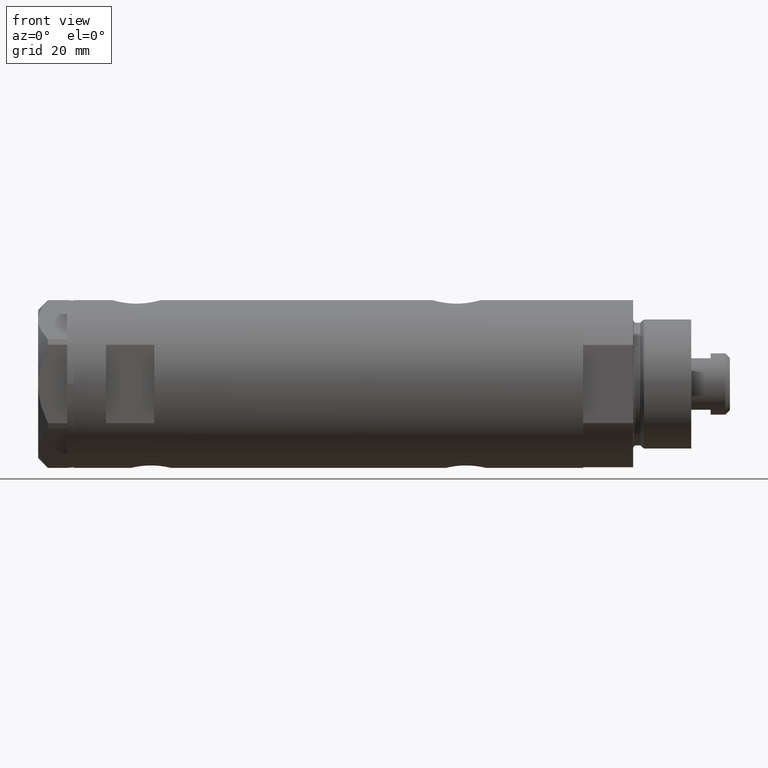
[diagram: clean part render]
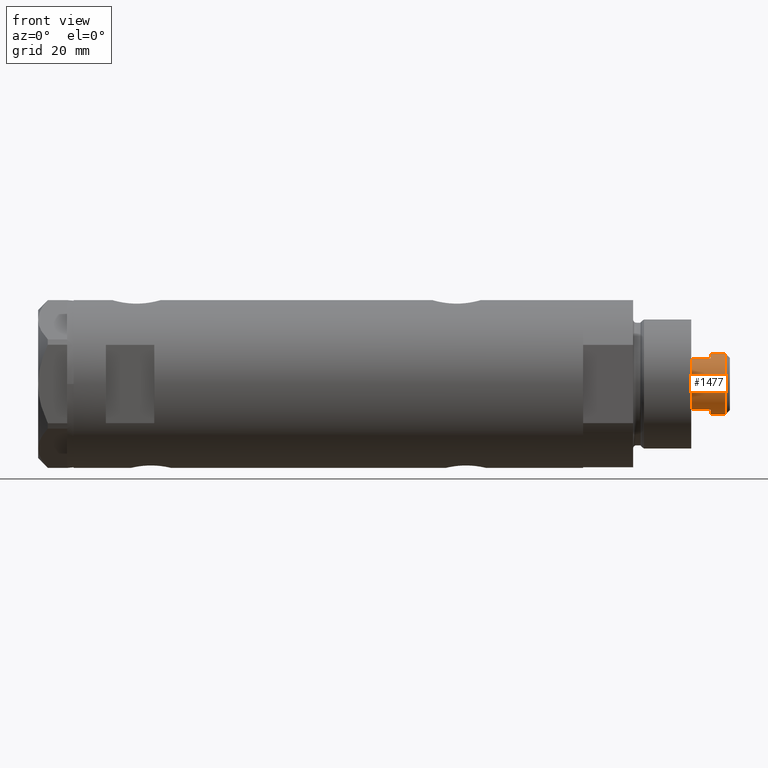
[diagram: same view with one face highlighted and labeled with its STEP entity id]
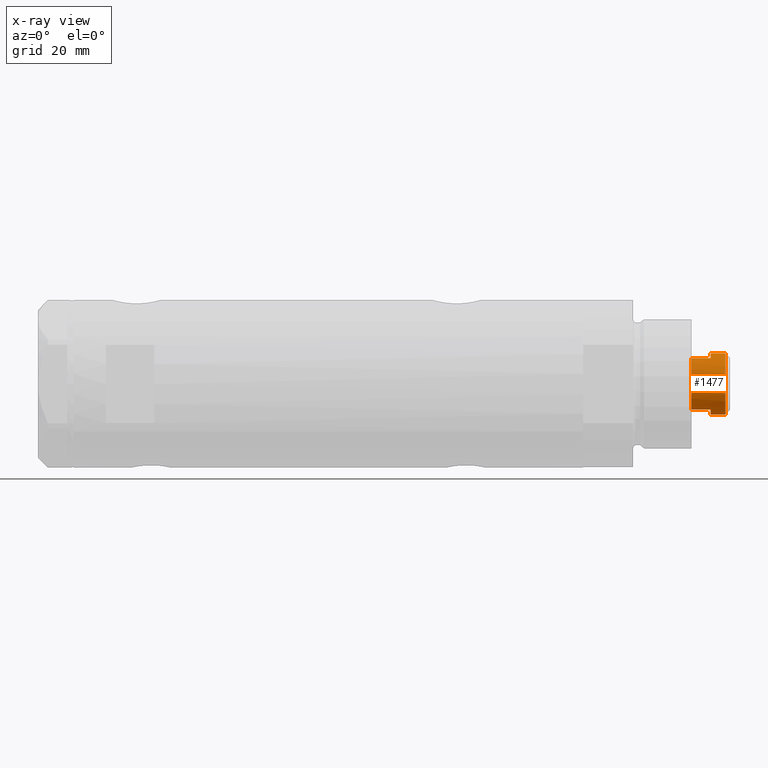
[diagram: x-ray of the same camera — body ghosted, the highlighted face saturated]
A machine part, front view. The second image highlights one B-rep face of the part: STEP entity #1477.
The next image is the same camera in x-ray: the body ghosted, the highlighted face saturated — about 0% of this face is hidden behind the body in this view.
In plain terms, the highlighted cylindrical surface (edge-blend (fillet) strip) has radius 9.5 mm, axis along (-1, -0, 0).
Its self-contained STEP definition (entity closure, byte-faithful):
#70 = DIRECTION ( 'NONE',  ( -0.000000000000000000, -0.000000000000000000, -1.000000000000000000 ) ) ;
#336 = ORIENTED_EDGE ( 'NONE', *, *, #3623, .T. ) ;
#351 = CARTESIAN_POINT ( 'NONE',  ( 0.000000000000000000, 0.000000000000000000, 178.2000000000000171 ) ) ;
#361 = DIRECTION ( 'NONE',  ( -0.000000000000000000, -0.000000000000000000, -1.000000000000000000 ) ) ;
#375 = DIRECTION ( 'NONE',  ( 1.000000000000000000, 0.000000000000000000, 0.000000000000000000 ) ) ;
#404 = AXIS2_PLACEMENT_3D ( 'NONE', #1886, #3188, #1607 ) ;
#406 = VECTOR ( 'NONE', #3936, 1000.000000000000000 ) ;
#496 = CARTESIAN_POINT ( 'NONE',  ( 0.000000000000000000, 0.000000000000000000, 173.6000000000000227 ) ) ;
#564 = AXIS2_PLACEMENT_3D ( 'NONE', #3082, #3827, #1476 ) ;
#649 = EDGE_CURVE ( 'NONE', #2928, #1361, #2753, .T. ) ;
#690 = LINE ( 'NONE', #714, #2821 ) ;
#714 = CARTESIAN_POINT ( 'NONE',  ( 9.500000000000001776, 1.163414459189985682E-15, 173.6000000000000227 ) ) ;
#735 = CIRCLE ( 'NONE', #404, 9.500000000000000000 ) ;
#906 = AXIS2_PLACEMENT_3D ( 'NONE', #496, #4404, #4095 ) ;
#1052 = DIRECTION ( 'NONE',  ( -0.000000000000000000, -0.000000000000000000, -1.000000000000000000 ) ) ;
#1056 = ORIENTED_EDGE ( 'NONE', *, *, #3935, .T. ) ;
#1063 = CIRCLE ( 'NONE', #564, 9.500000000000001776 ) ;
#1348 = EDGE_CURVE ( 'NONE', #4584, #2107, #690, .T. ) ;
#1361 = VERTEX_POINT ( 'NONE', #2615 ) ;
#1476 = DIRECTION ( 'NONE',  ( 1.000000000000000000, 0.000000000000000000, 0.000000000000000000 ) ) ;
#1477 = ADVANCED_FACE ( 'NONE', ( #2375 ), #4423, .T. ) ;
#1573 = CIRCLE ( 'NONE', #4345, 9.500000000000001776 ) ;
#1607 = DIRECTION ( 'NONE',  ( 1.000000000000000000, 0.000000000000000000, 0.000000000000000000 ) ) ;
#1663 = DIRECTION ( 'NONE',  ( -0.000000000000000000, -0.000000000000000000, -1.000000000000000000 ) ) ;
#1886 = CARTESIAN_POINT ( 'NONE',  ( 0.000000000000000000, 0.000000000000000000, 173.6000000000000227 ) ) ;
#1955 = ORIENTED_EDGE ( 'NONE', *, *, #649, .T. ) ;
#2106 = ORIENTED_EDGE ( 'NONE', *, *, #1348, .F. ) ;
#2107 = VERTEX_POINT ( 'NONE', #4213 ) ;
#2112 = CARTESIAN_POINT ( 'NONE',  ( -9.500000000000001776, 0.000000000000000000, 173.6000000000000227 ) ) ;
#2237 = VECTOR ( 'NONE', #70, 1000.000000000000000 ) ;
#2323 = LINE ( 'NONE', #4742, #406 ) ;
#2375 = FACE_OUTER_BOUND ( 'NONE', #3568, .T. ) ;
#2376 = DIRECTION ( 'NONE',  ( 0.000000000000000000, 0.000000000000000000, -1.000000000000000000 ) ) ;
#2423 = CIRCLE ( 'NONE', #906, 9.500000000000000000 ) ;
#2450 = VERTEX_POINT ( 'NONE', #2473 ) ;
#2473 = CARTESIAN_POINT ( 'NONE',  ( -9.500000000000000000, 0.000000000000000000, 173.6000000000000227 ) ) ;
#2479 = VERTEX_POINT ( 'NONE', #2845 ) ;
#2506 = LINE ( 'NONE', #2112, #2237 ) ;
#2615 = CARTESIAN_POINT ( 'NONE',  ( -7.982950582334825462, -5.150000000000194866, 167.6000000000000227 ) ) ;
#2753 = LINE ( 'NONE', #3208, #4502 ) ;
#2767 = DIRECTION ( 'NONE',  ( -1.000000000000000000, 0.000000000000000000, 0.000000000000000000 ) ) ;
#2785 = VERTEX_POINT ( 'NONE', #5074 ) ;
#2821 = VECTOR ( 'NONE', #1052, 1000.000000000000000 ) ;
#2845 = CARTESIAN_POINT ( 'NONE',  ( -9.500000000000001776, 0.000000000000000000, 178.2000000000000171 ) ) ;
#2901 = EDGE_CURVE ( 'NONE', #2450, #2928, #735, .T. ) ;
#2928 = VERTEX_POINT ( 'NONE', #3584 ) ;
#2974 = ORIENTED_EDGE ( 'NONE', *, *, #3868, .T. ) ;
#3082 = CARTESIAN_POINT ( 'NONE',  ( 0.000000000000000000, 0.000000000000000000, 167.6000000000000227 ) ) ;
#3188 = DIRECTION ( 'NONE',  ( 0.000000000000000000, 0.000000000000000000, 1.000000000000000000 ) ) ;
#3208 = CARTESIAN_POINT ( 'NONE',  ( -7.982950582334829015, -5.150000000000001243, 173.6000000000000227 ) ) ;
#3479 = ORIENTED_EDGE ( 'NONE', *, *, #4995, .F. ) ;
#3568 = EDGE_LOOP ( 'NONE', ( #2106, #2974, #1056, #4052, #1955, #336, #3479, #4260 ) ) ;
#3584 = CARTESIAN_POINT ( 'NONE',  ( -7.982950582334825462, -5.150000000000003020, 173.6000000000000227 ) ) ;
#3591 = CARTESIAN_POINT ( 'NONE',  ( 0.000000000000000000, 0.000000000000000000, 173.6000000000000227 ) ) ;
#3623 = EDGE_CURVE ( 'NONE', #1361, #4496, #1063, .T. ) ;
#3827 = DIRECTION ( 'NONE',  ( 0.000000000000000000, 0.000000000000000000, 1.000000000000000000 ) ) ;
#3868 = EDGE_CURVE ( 'NONE', #4584, #2479, #1573, .T. ) ;
#3935 = EDGE_CURVE ( 'NONE', #2479, #2450, #2506, .T. ) ;
#3936 = DIRECTION ( 'NONE',  ( -0.000000000000000000, -0.000000000000000000, -1.000000000000000000 ) ) ;
#4052 = ORIENTED_EDGE ( 'NONE', *, *, #2901, .T. ) ;
#4095 = DIRECTION ( 'NONE',  ( 1.000000000000000000, 0.000000000000000000, 0.000000000000000000 ) ) ;
#4213 = CARTESIAN_POINT ( 'NONE',  ( 9.500000000000000000, 1.163414459189985485E-15, 173.6000000000000227 ) ) ;
#4260 = ORIENTED_EDGE ( 'NONE', *, *, #4631, .T. ) ;
#4345 = AXIS2_PLACEMENT_3D ( 'NONE', #351, #2376, #375 ) ;
#4357 = CARTESIAN_POINT ( 'NONE',  ( 9.500000000000001776, 1.163414459189985682E-15, 178.2000000000000171 ) ) ;
#4404 = DIRECTION ( 'NONE',  ( 0.000000000000000000, 0.000000000000000000, 1.000000000000000000 ) ) ;
#4423 = CYLINDRICAL_SURFACE ( 'NONE', #4756, 9.500000000000001776 ) ;
#4496 = VERTEX_POINT ( 'NONE', #4666 ) ;
#4502 = VECTOR ( 'NONE', #361, 1000.000000000000000 ) ;
#4584 = VERTEX_POINT ( 'NONE', #4357 ) ;
#4631 = EDGE_CURVE ( 'NONE', #2785, #2107, #2423, .T. ) ;
#4666 = CARTESIAN_POINT ( 'NONE',  ( 7.982950582334834344, -5.150000000000185985, 167.6000000000000227 ) ) ;
#4742 = CARTESIAN_POINT ( 'NONE',  ( 7.982950582334832568, -5.149999999999997691, 173.6000000000000227 ) ) ;
#4756 = AXIS2_PLACEMENT_3D ( 'NONE', #3591, #1663, #2767 ) ;
#4995 = EDGE_CURVE ( 'NONE', #2785, #4496, #2323, .T. ) ;
#5074 = CARTESIAN_POINT ( 'NONE',  ( 7.982950582334832568, -5.149999999999997691, 173.6000000000000227 ) ) ;